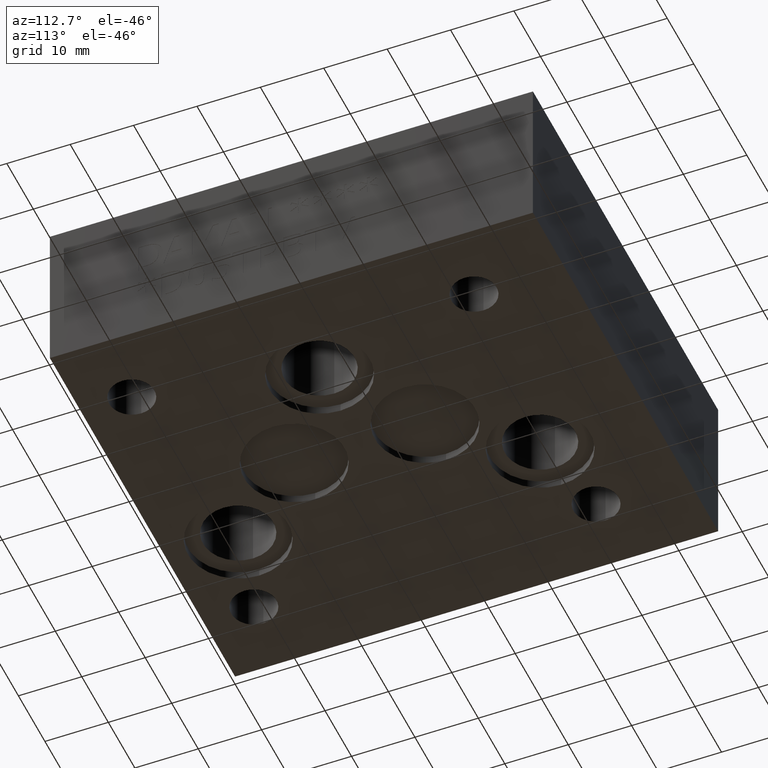
[diagram: clean part render]
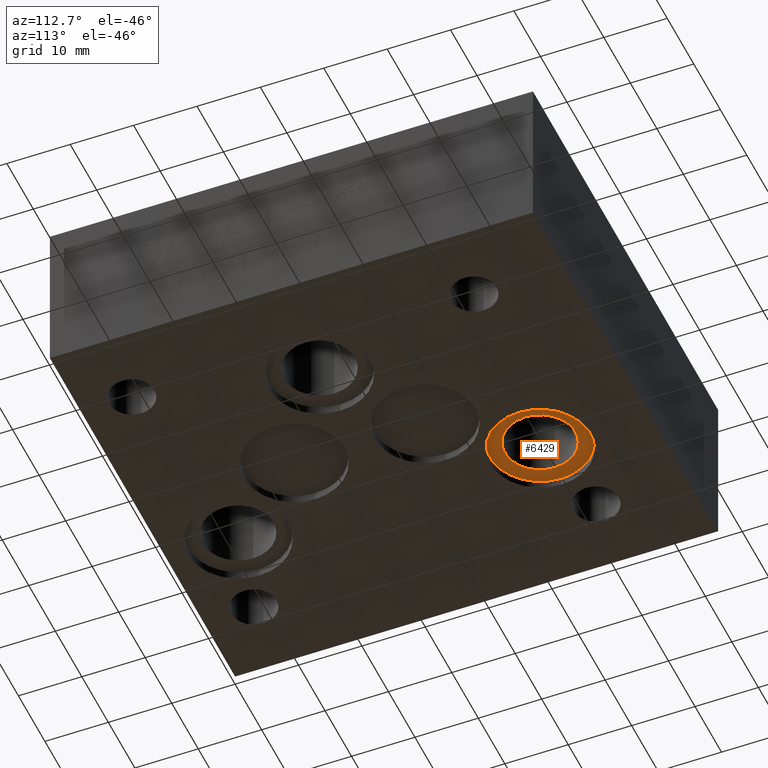
[diagram: same view with one face highlighted and labeled with its STEP entity id]
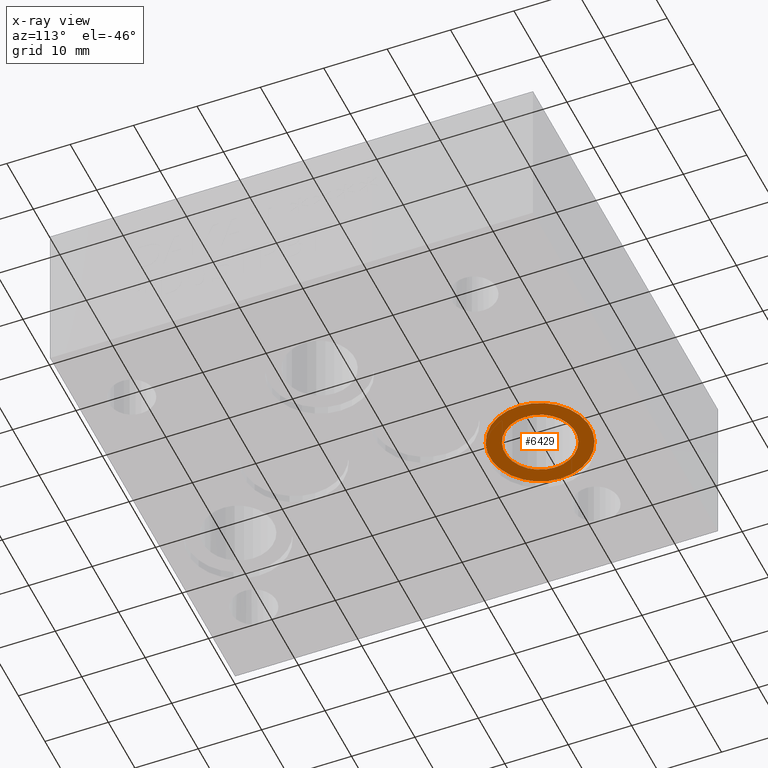
[diagram: x-ray of the same camera — body ghosted, the highlighted face saturated]
A machine part, auxiliary view. The second image highlights one B-rep face of the part: STEP entity #6429.
The next image is the same camera in x-ray: the body ghosted, the highlighted face saturated — about 0% of this face is hidden behind the body in this view.
In plain terms, the highlighted planar face has unit normal (0, 0, -1).
Its self-contained STEP definition (entity closure, byte-faithful):
#31=CIRCLE('',#6708,7.9375);
#32=CIRCLE('',#6709,7.9375);
#33=CIRCLE('',#6710,5.5626);
#128=FACE_BOUND('',#978,.T.);
#633=FACE_OUTER_BOUND('',#977,.T.);
#977=EDGE_LOOP('',(#5433,#5434));
#978=EDGE_LOOP('',(#5435));
#2922=VERTEX_POINT('',#10536);
#2923=VERTEX_POINT('',#10537);
#2924=VERTEX_POINT('',#10540);
#3777=EDGE_CURVE('',#2922,#2923,#31,.T.);
#3778=EDGE_CURVE('',#2923,#2922,#32,.T.);
#3779=EDGE_CURVE('',#2924,#2924,#33,.T.);
#5433=ORIENTED_EDGE('',*,*,#3777,.T.);
#5434=ORIENTED_EDGE('',*,*,#3778,.T.);
#5435=ORIENTED_EDGE('',*,*,#3779,.F.);
#5859=PLANE('',#6707);
#6429=ADVANCED_FACE('',(#633,#128),#5859,.T.);
#6707=AXIS2_PLACEMENT_3D('',#10535,#7910,#7911);
#6708=AXIS2_PLACEMENT_3D('',#10538,#7912,#7913);
#6709=AXIS2_PLACEMENT_3D('',#10539,#7914,#7915);
#6710=AXIS2_PLACEMENT_3D('',#10541,#7916,#7917);
#7910=DIRECTION('center_axis',(0.,0.,-1.));
#7911=DIRECTION('ref_axis',(1.,0.,0.));
#7912=DIRECTION('center_axis',(0.,0.,-1.));
#7913=DIRECTION('ref_axis',(1.,0.,0.));
#7914=DIRECTION('center_axis',(0.,0.,-1.));
#7915=DIRECTION('ref_axis',(1.,0.,0.));
#7916=DIRECTION('center_axis',(0.,0.,-1.));
#7917=DIRECTION('ref_axis',(1.,0.,0.));
#10535=CARTESIAN_POINT('Origin',(25.4254,58.7502,1.3208));
#10536=CARTESIAN_POINT('',(33.3629,58.7502,1.3208));
#10537=CARTESIAN_POINT('',(17.4879,58.7502,1.3208));
#10538=CARTESIAN_POINT('Origin',(25.4254,58.7502,1.3208));
#10539=CARTESIAN_POINT('Origin',(25.4254,58.7502,1.3208));
#10540=CARTESIAN_POINT('',(19.8628,58.7502,1.3208));
#10541=CARTESIAN_POINT('Origin',(25.4254,58.7502,1.3208));